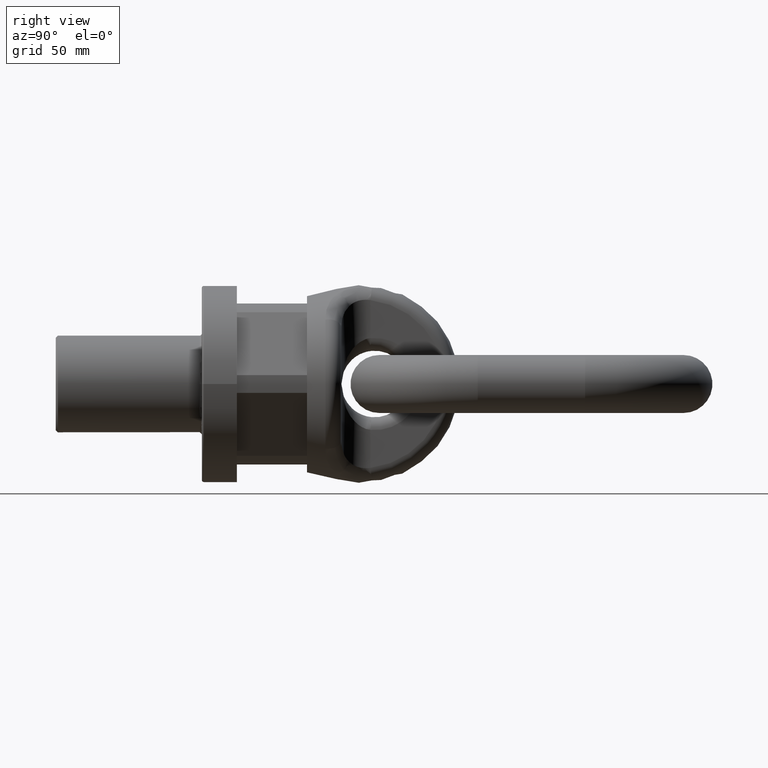
[diagram: clean part render]
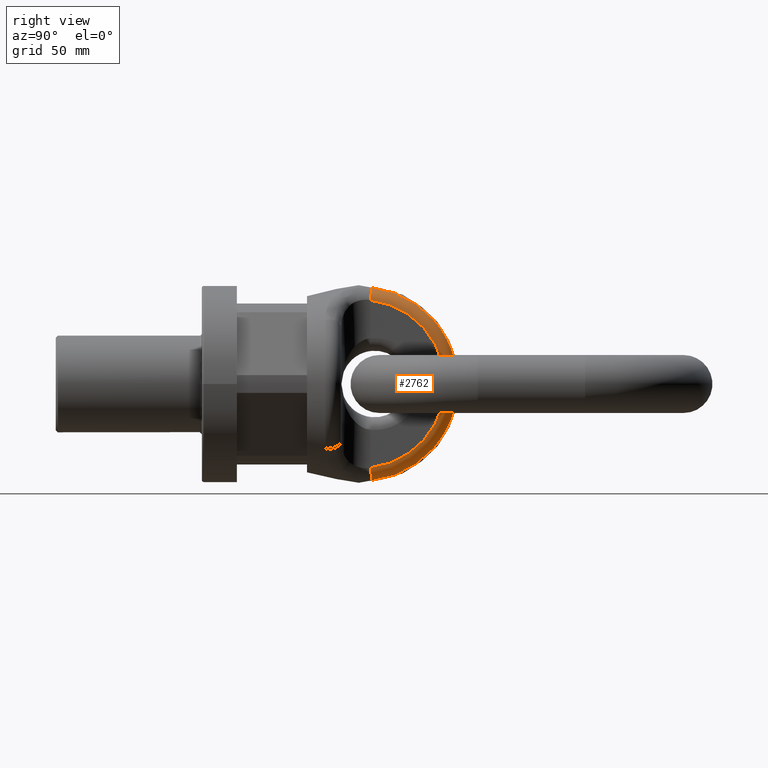
[diagram: same view with one face highlighted and labeled with its STEP entity id]
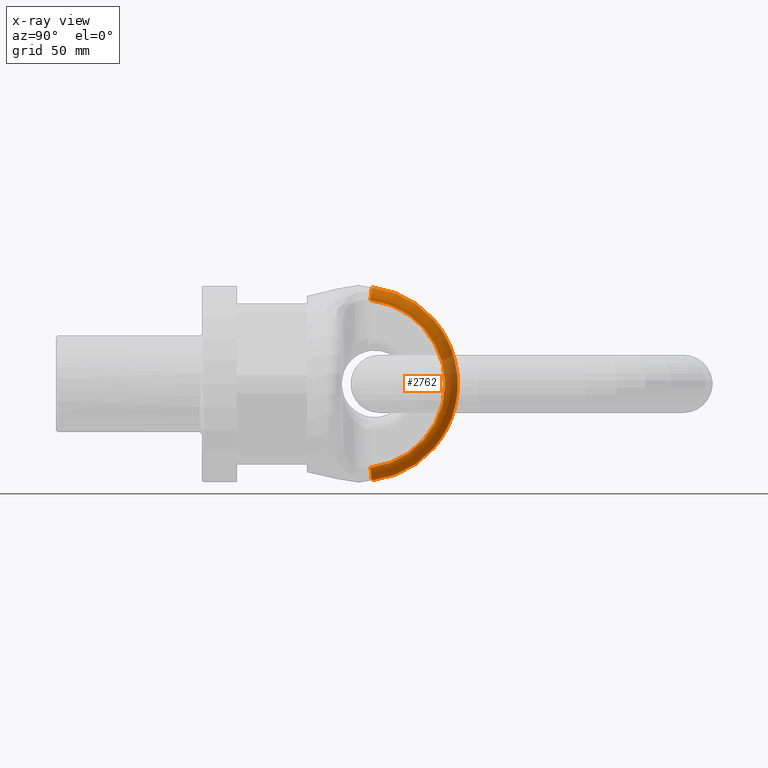
[diagram: x-ray of the same camera — body ghosted, the highlighted face saturated]
A machine part, right view. The second image highlights one B-rep face of the part: STEP entity #2762.
The next image is the same camera in x-ray: the body ghosted, the highlighted face saturated — about 20% of this face is hidden behind the body in this view.
In plain terms, the highlighted toroidal blend (fillet) surface has major radius 39.2906 mm and minor (blend) radius 6 mm.
Its self-contained STEP definition (entity closure, byte-faithful):
#1790=TOROIDAL_SURFACE('',#5714,39.2905841137543,6.);
#1906=FACE_OUTER_BOUND('',#3206,.T.);
#2762=ADVANCED_FACE('',(#1906),#1790,.T.);
#3206=EDGE_LOOP('',(#3964,#3965,#3966,#3967));
#3964=ORIENTED_EDGE('',*,*,#5253,.T.);
#3965=ORIENTED_EDGE('',*,*,#5064,.F.);
#3966=ORIENTED_EDGE('',*,*,#5256,.F.);
#3967=ORIENTED_EDGE('',*,*,#5003,.F.);
#4590=VERTEX_POINT('',#6781);
#4593=VERTEX_POINT('',#6786);
#4651=VERTEX_POINT('',#7037);
#4652=VERTEX_POINT('',#7039);
#5003=EDGE_CURVE('',#4593,#4590,#5552,.T.);
#5064=EDGE_CURVE('',#4651,#4652,#5556,.T.);
#5253=EDGE_CURVE('',#4593,#4652,#5566,.T.);
#5256=EDGE_CURVE('',#4590,#4651,#5569,.T.);
#5552=CIRCLE('',#5640,39.2905841137543);
#5556=CIRCLE('',#5647,45.1841717308174);
#5566=CIRCLE('',#5710,6.);
#5569=CIRCLE('',#5713,6.);
#5640=AXIS2_PLACEMENT_3D('',#6787,#5923,#5924);
#5647=AXIS2_PLACEMENT_3D('',#7038,#5965,#5966);
#5710=AXIS2_PLACEMENT_3D('',#8088,#6217,#6218);
#5713=AXIS2_PLACEMENT_3D('',#8127,#6223,#6224);
#5714=AXIS2_PLACEMENT_3D('',#8128,#6225,#6226);
#5923=DIRECTION('',(1.,-3.46944695195361E-16,0.));
#5924=DIRECTION('',(3.53208997036934E-16,1.,0.));
#5965=DIRECTION('',(-1.,3.46944695195361E-16,0.));
#5966=DIRECTION('',(-3.4553054057961E-16,-1.,0.));
#6217=DIRECTION('',(0.,0.993419645010666,0.114531257335641));
#6218=DIRECTION('',(0.,-0.114531257335642,0.993419645010665));
#6223=DIRECTION('',(0.,-0.993419645010666,0.114531257335639));
#6224=DIRECTION('',(0.,-0.11453125733564,-0.993419645010666));
#6225=DIRECTION('',(1.,-3.46944695195361E-16,0.));
#6226=DIRECTION('',(3.44718700129326E-16,1.,0.));
#6781=CARTESIAN_POINT('',(13.5,78.5,39.0320381225475));
#6786=CARTESIAN_POINT('',(13.5,78.5,-39.0320381225475));
#6787=CARTESIAN_POINT('',(13.5,74.,0.));
#7037=CARTESIAN_POINT('',(8.62499999999999,79.175,44.8868438409296));
#7038=CARTESIAN_POINT('',(8.62499999999999,74.,0.));
#7039=CARTESIAN_POINT('',(8.62499999999999,79.175,-44.8868438409296));
#8088=CARTESIAN_POINT('',(7.49999999999999,78.5,-39.0320381225475));
#8127=CARTESIAN_POINT('',(7.49999999999999,78.5,39.0320381225475));
#8128=CARTESIAN_POINT('',(7.49999999999999,74.,0.));